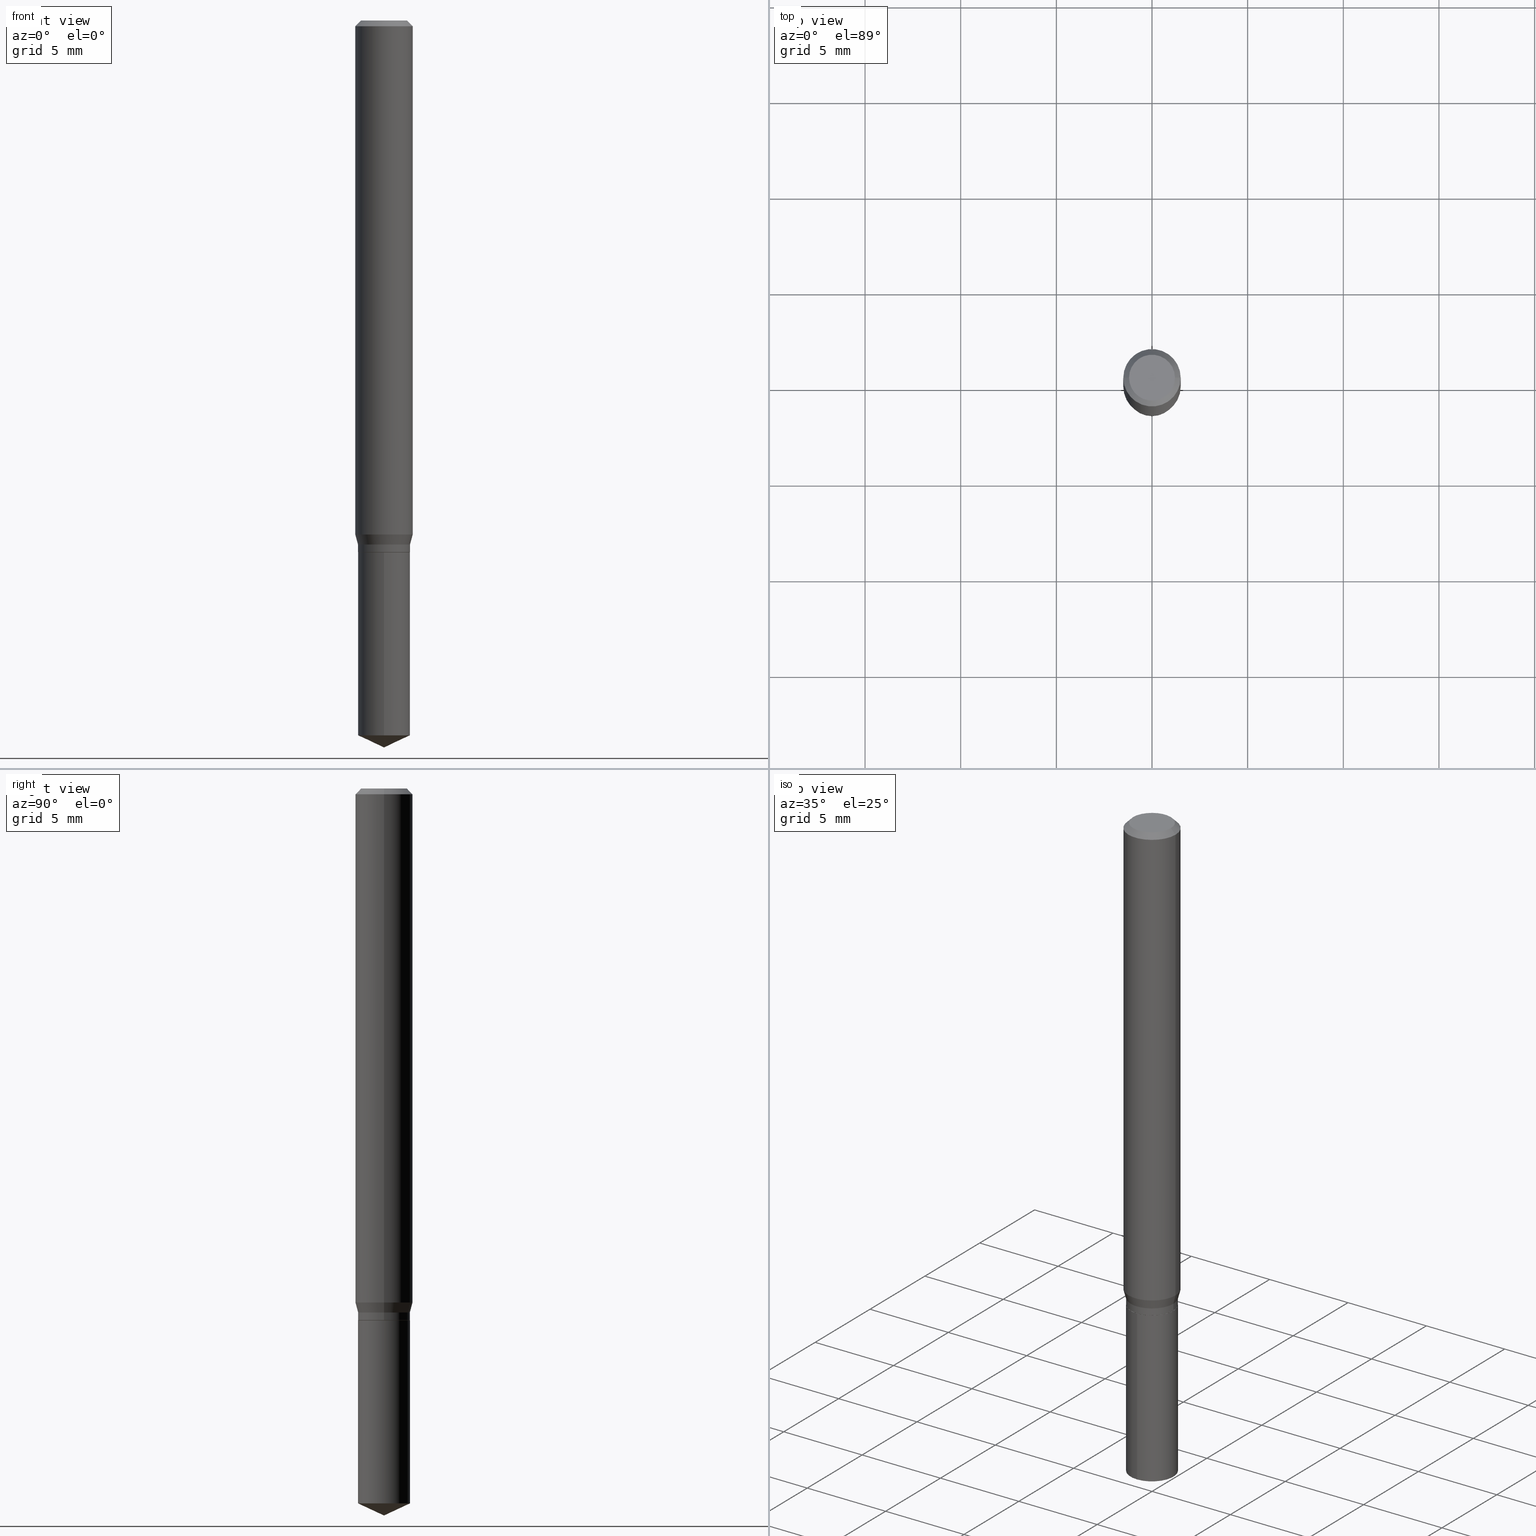
[diagram: canonical four-view strip — front | top / right | iso, engineering-drawing reading convention]
A machine part, canonical four-view strip (front | top / right | iso — engineering-drawing reading convention). The complete STEP part file that produces these views, byte-faithful:
ISO-10303-21;
HEADER;
FILE_DESCRIPTION (( 'STEP AP203' ),
    '1' );
FILE_NAME ('07687.STEP',
    '2024-04-24T01:03:04',
    ( '' ),
    ( '' ),
    'SwSTEP 2.0',
    'SolidWorks 2023',
    '' );
FILE_SCHEMA (( 'CONFIG_CONTROL_DESIGN' ));
ENDSEC;

DATA;
#1 = DIRECTION ( 'NONE',  ( -6.982962677686267499E-15, -1.000000000000000000, 3.520397390770465703E-15 ) ) ;
#2 = CARTESIAN_POINT ( 'NONE',  ( 0.05304999999999999993, -4.191872495415079241E-15, -1.094500000000000028 ) ) ;
#3 = DATE_AND_TIME ( #42, #224 ) ;
#4 = CARTESIAN_POINT ( 'NONE',  ( 0.04724000000000000421, -3.852183633974369345E-16, -3.380025165621689721E-19 ) ) ;
#5 = CARTESIAN_POINT ( 'NONE',  ( 3.597596898163577988E-29, -5.136425579091718699E-15, -1.471129224905799671 ) ) ;
#6 = PERSON_AND_ORGANIZATION ( #126, #196 ) ;
#7 = EDGE_LOOP ( 'NONE', ( #68, #379, #100, #136 ) ) ;
#8 = CARTESIAN_POINT ( 'NONE',  ( 2.637193560590051210E-29, -3.765213475808447992E-15, -1.078399999999999803 ) ) ;
#9 = DIRECTION ( 'NONE',  ( 1.000000000000000000, -6.982962677686265922E-15, 4.876176775795935793E-29 ) ) ;
#10 = DIRECTION ( 'NONE',  ( 1.000000000000000000, -6.982962677686266711E-15, 0.000000000000000000 ) ) ;
#11 = DIRECTION ( 'NONE',  ( 1.000000000000000000, -6.982962677686265922E-15, 0.000000000000000000 ) ) ;
#12 = EDGE_CURVE ( 'NONE', #475, #291, #428, .T. ) ;
#13 = CONICAL_SURFACE ( 'NONE', #413, 0.05355000000000000038, 0.2617993877991501295 ) ;
#14 = VECTOR ( 'NONE', #135, 39.37007874015748143 ) ;
#15 = DIRECTION ( 'NONE',  ( 6.982962677686265922E-15, 1.000000000000000000, -3.491495526022433599E-15 ) ) ;
#16 = CARTESIAN_POINT ( 'NONE',  ( -0.04724000000000000421, 3.504923541997677355E-16, -3.380025165670481712E-19 ) ) ;
#17 = DIRECTION ( 'NONE',  ( -6.982962677686265922E-15, -1.000000000000000000, 2.550745092123495208E-15 ) ) ;
#18 = DIRECTION ( 'NONE',  ( -1.000000000000000000, 6.982962677686265922E-15, -4.876176775795935793E-29 ) ) ;
#19 = DIRECTION ( 'NONE',  ( 1.000000000000000000, -6.982962677686265133E-15, 0.000000000000000000 ) ) ;
#20 = ADVANCED_FACE ( 'NONE', ( #43 ), #114, .T. ) ;
#21 = CARTESIAN_POINT ( 'NONE',  ( -3.739376513900635326E-16, -0.05355000000000514210, -1.471129224905799449 ) ) ;
#22 = AXIS2_PLACEMENT_3D ( 'NONE', #85, #80, #52 ) ;
#23 = VECTOR ( 'NONE', #66, 39.37007874015748143 ) ;
#24 = DIRECTION ( 'NONE',  ( 1.000000000000000000, -6.982962677686265922E-15, 0.000000000000000000 ) ) ;
#25 = AXIS2_PLACEMENT_3D ( 'NONE', #124, #89, #9 ) ;
#26 = ORIENTED_EDGE ( 'NONE', *, *, #110, .T. ) ;
#27 = ORIENTED_EDGE ( 'NONE', *, *, #363, .F. ) ;
#28 = EDGE_CURVE ( 'NONE', #97, #208, #337, .T. ) ;
#29 = PERSON_AND_ORGANIZATION ( #126, #196 ) ;
#30 = VERTEX_POINT ( 'NONE', #4 ) ;
#31 = COORDINATED_UNIVERSAL_TIME_OFFSET ( 5, 0, .BEHIND. ) ;
#32 = LOCAL_TIME ( 21, 3, 4.000000000000000000, #256 ) ;
#33 = ORIENTED_EDGE ( 'NONE', *, *, #486, .T. ) ;
#34 = DIRECTION ( 'NONE',  ( -2.445468806185136597E-29, 3.491481338843145583E-15, 1.000000000000000000 ) ) ;
#35 = SECURITY_CLASSIFICATION_LEVEL ( 'unclassified' ) ;
#36 = FACE_OUTER_BOUND ( 'NONE', #362, .T. ) ;
#37 = EDGE_CURVE ( 'NONE', #133, #475, #420, .T. ) ;
#38 = ORIENTED_EDGE ( 'NONE', *, *, #212, .F. ) ;
#39 = CIRCLE ( 'NONE', #121, 0.05304999999999999993 ) ;
#40 = VERTEX_POINT ( 'NONE', #304 ) ;
#41 = VECTOR ( 'NONE', #96, 39.37007874015748143 ) ;
#42 = CALENDAR_DATE ( 2024, 23, 4 ) ;
#43 = FACE_OUTER_BOUND ( 'NONE', #297, .T. ) ;
#44 = ADVANCED_FACE ( 'NONE', ( #333 ), #459, .T. ) ;
#45 = ORIENTED_EDGE ( 'NONE', *, *, #12, .T. ) ;
#46 = AXIS2_PLACEMENT_3D ( 'NONE', #94, #53, #396 ) ;
#47 = LOCAL_TIME ( 21, 3, 4.000000000000000000, #31 ) ;
#48 = CARTESIAN_POINT ( 'NONE',  ( 2.676565608369631794E-29, -3.821426325363822773E-15, -1.094499999999999806 ) ) ;
#49 = MANIFOLD_SOLID_BREP ( 'Body-Move/Copy2[2]', #84 ) ;
#50 = DIRECTION ( 'NONE',  ( -2.445468806185136597E-29, 3.491481338843145583E-15, 1.000000000000000000 ) ) ;
#51 = CARTESIAN_POINT ( 'NONE',  ( 2.676565608369631794E-29, -3.821426325363822773E-15, -1.094499999999999806 ) ) ;
#52 = DIRECTION ( 'NONE',  ( 1.000000000000000000, -6.982962677686266711E-15, 0.000000000000000000 ) ) ;
#53 = DIRECTION ( 'NONE',  ( -2.445468806185136597E-29, 3.491481338843145583E-15, 1.000000000000000000 ) ) ;
#54 = FACE_OUTER_BOUND ( 'NONE', #267, .T. ) ;
#55 = DIRECTION ( 'NONE',  ( -2.445468806185136597E-29, 3.491481338843145583E-15, 1.000000000000000000 ) ) ;
#56 = CARTESIAN_POINT ( 'NONE',  ( 8.265746106709734507E-48, -1.180129479067563789E-33, -3.380025165646692144E-19 ) ) ;
#57 = FACE_OUTER_BOUND ( 'NONE', #322, .T. ) ;
#58 = EDGE_LOOP ( 'NONE', ( #417, #445, #412, #478 ) ) ;
#59 = CIRCLE ( 'NONE', #418, 0.05304999999999999993 ) ;
#60 = VECTOR ( 'NONE', #183, 39.37007874015748143 ) ;
#61 = ORIENTED_EDGE ( 'NONE', *, *, #28, .F. ) ;
#62 = VERTEX_POINT ( 'NONE', #382 ) ;
#63 = CARTESIAN_POINT ( 'NONE',  ( 3.804956349995603256E-16, 0.05354999999999617705, -1.094500000000000028 ) ) ;
#64 = ORIENTED_EDGE ( 'NONE', *, *, #462, .T. ) ;
#65 = APPROVAL ( #446, 'UNSPECIFIED' ) ;
#66 = DIRECTION ( 'NONE',  ( -2.445458899330790108E-29, 3.491495526022433599E-15, 1.000000000000000000 ) ) ;
#67 = APPROVAL_PERSON_ORGANIZATION ( #113, #430, #335 ) ;
#68 = ORIENTED_EDGE ( 'NONE', *, *, #363, .T. ) ;
#69 = EDGE_CURVE ( 'NONE', #365, #407, #452, .T. ) ;
#70 = CARTESIAN_POINT ( 'NONE',  ( 2.675342873966538993E-29, -3.819680584694400481E-15, -1.093999999999999861 ) ) ;
#71 = APPROVAL_DATE_TIME ( #416, #438 ) ;
#72 = DIRECTION ( 'NONE',  ( -2.445458899330790108E-29, 3.491495526022433205E-15, 1.000000000000000000 ) ) ;
#73 = DIRECTION ( 'NONE',  ( 1.000000000000000000, -6.982962677686266711E-15, 0.000000000000000000 ) ) ;
#74 = CC_DESIGN_PERSON_AND_ORGANIZATION_ASSIGNMENT ( #373, #266, ( #306 ) ) ;
#75 = DATE_TIME_ROLE ( 'creation_date' ) ;
#76 = AXIS2_PLACEMENT_3D ( 'NONE', #423, #328, #302 ) ;
#77 = VERTEX_POINT ( 'NONE', #16 ) ;
#78 = DIRECTION ( 'NONE',  ( 6.439704144417026409E-15, 0.9063077870366516020, 0.4226182617406958331 ) ) ;
#79 = CALENDAR_DATE ( 2024, 23, 4 ) ;
#80 = DIRECTION ( 'NONE',  ( -2.445468806185136597E-29, 3.491481338843145583E-15, 1.000000000000000000 ) ) ;
#81 = CONICAL_SURFACE ( 'NONE', #364, 84.42940631927405093, 1.134464013796314674 ) ;
#82 = LINE ( 'NONE', #235, #313 ) ;
#83 = LOCAL_TIME ( 21, 3, 4.000000000000000000, #264 ) ;
#84 = CLOSED_SHELL ( 'NONE', ( #489, #155, #44, #229, #176, #303, #167, #20, #453, #332, #250, #171 ) ) ;
#85 = CARTESIAN_POINT ( 'NONE',  ( 2.888098660104664204E-31, -4.123439461173780263E-17, -0.01181000000000007218 ) ) ;
#86 = DIRECTION ( 'NONE',  ( 1.000000000000000000, -6.982962677686266711E-15, 0.000000000000000000 ) ) ;
#87 = DIRECTION ( 'NONE',  ( -2.445468806185136597E-29, 3.491481338843145583E-15, 1.000000000000000000 ) ) ;
#88 = DIRECTION ( 'NONE',  ( 2.445458899330789267E-29, -3.491495526022433599E-15, -1.000000000000000000 ) ) ;
#89 = DIRECTION ( 'NONE',  ( -2.438088387897960049E-29, 3.491481338843145188E-15, 1.000000000000000000 ) ) ;
#90 = EDGE_CURVE ( 'NONE', #244, #257, #128, .T. ) ;
#91 = CIRCLE ( 'NONE', #191, 0.04724000000000000421 ) ;
#92 = CARTESIAN_POINT ( 'NONE',  ( 0.05355000000000000038, -4.139151127198547467E-15, -1.078399999999999803 ) ) ;
#93 = DIRECTION ( 'NONE',  ( 1.000000000000000000, -6.982962677686266711E-15, 0.000000000000000000 ) ) ;
#94 = CARTESIAN_POINT ( 'NONE',  ( 0.000000000000000000, 0.000000000000000000, 0.000000000000000000 ) ) ;
#95 = ORIENTED_EDGE ( 'NONE', *, *, #479, .T. ) ;
#96 = DIRECTION ( 'NONE',  ( -6.328713451373370956E-15, -0.9063077870366487154, 0.4226182617407022724 ) ) ;
#97 = VERTEX_POINT ( 'NONE', #148 ) ;
#98 = DIRECTION ( 'NONE',  ( 1.000000000000000000, 0.000000000000000000, 0.000000000000000000 ) ) ;
#99 = EDGE_CURVE ( 'NONE', #257, #244, #157, .T. ) ;
#100 = ORIENTED_EDGE ( 'NONE', *, *, #384, .F. ) ;
#101 = ORIENTED_EDGE ( 'NONE', *, *, #189, .T. ) ;
#102 = ORIENTED_EDGE ( 'NONE', *, *, #399, .T. ) ;
#103 = AXIS2_PLACEMENT_3D ( 'NONE', #8, #468, #283 ) ;
#104 = CC_DESIGN_APPROVAL ( #438, ( #306 ) ) ;
#105 = VECTOR ( 'NONE', #243, 39.37007874015748143 ) ;
#106 = ORIENTED_EDGE ( 'NONE', *, *, #409, .T. ) ;
#107 = PERSON_AND_ORGANIZATION ( #126, #196 ) ;
#108 = ORIENTED_EDGE ( 'NONE', *, *, #273, .T. ) ;
#109 = DATE_AND_TIME ( #188, #83 ) ;
#110 = EDGE_CURVE ( 'NONE', #77, #208, #82, .T. ) ;
#111 = DIRECTION ( 'NONE',  ( -2.445468806185136597E-29, 3.491481338843145583E-15, 1.000000000000000000 ) ) ;
#112 = DIRECTION ( 'NONE',  ( -6.982962677686265922E-15, -1.000000000000000000, 5.101490184246990416E-15 ) ) ;
#113 = PERSON_AND_ORGANIZATION ( #126, #196 ) ;
#114 = CYLINDRICAL_SURFACE ( 'NONE', #248, 0.05905000000000006771 ) ;
#115 = PERSON_AND_ORGANIZATION ( #126, #196 ) ;
#116 = DIRECTION ( 'NONE',  ( -6.982962677686267499E-15, -1.000000000000000000, 3.520397390770465703E-15 ) ) ;
#117 = ORIENTED_EDGE ( 'NONE', *, *, #456, .T. ) ;
#118 = DIRECTION ( 'NONE',  ( -6.982962677686265922E-15, -1.000000000000000000, 5.101490184246990416E-15 ) ) ;
#119 = EDGE_CURVE ( 'NONE', #455, #257, #150, .T. ) ;
#120 = DIRECTION ( 'NONE',  ( -2.445468806185136597E-29, 3.491481338843145583E-15, 1.000000000000000000 ) ) ;
#121 = AXIS2_PLACEMENT_3D ( 'NONE', #355, #50, #270 ) ;
#122 = CARTESIAN_POINT ( 'NONE',  ( 2.676565608369631794E-29, -3.821426325363822773E-15, -1.094499999999999806 ) ) ;
#123 = DIRECTION ( 'NONE',  ( -2.445458899330790108E-29, 3.491495526022433205E-15, 1.000000000000000000 ) ) ;
#124 = CARTESIAN_POINT ( 'NONE',  ( 7.086945735193175307E-30, -6.639529651533037669E-15, -1.094500000000000028 ) ) ;
#125 = DIRECTION ( 'NONE',  ( -2.445458899330790108E-29, 3.491495526022433599E-15, 1.000000000000000000 ) ) ;
#126 = PERSON ( 'UNSPECIFIED', 'UNSPECIFIED', 'UNSPECIFIED', ('UNSPECIFIED'), ('UNSPECIFIED'), ('UNSPECIFIED') ) ;
#127 = CARTESIAN_POINT ( 'NONE',  ( 2.637193560590051210E-29, -3.765213475808447992E-15, -1.078399999999999803 ) ) ;
#128 = CIRCLE ( 'NONE', #323, 0.05355000000000000038 ) ;
#129 = DIRECTION ( 'NONE',  ( 2.438088387897960049E-29, -3.491481338843145188E-15, -1.000000000000000000 ) ) ;
#130 = CYLINDRICAL_SURFACE ( 'NONE', #46, 0.05355000000000000038 ) ;
#131 = VERTEX_POINT ( 'NONE', #154 ) ;
#132 =( CONVERSION_BASED_UNIT ( 'INCH', #402 ) LENGTH_UNIT ( ) NAMED_UNIT ( #358 ) );
#133 = VERTEX_POINT ( 'NONE', #308 ) ;
#134 = ADVANCED_FACE ( 'NONE', ( #463 ), #466, .T. ) ;
#135 = DIRECTION ( 'NONE',  ( -2.445468806185136877E-29, 3.491481338843145188E-15, 1.000000000000000000 ) ) ;
#136 = ORIENTED_EDGE ( 'NONE', *, *, #424, .F. ) ;
#137 = VECTOR ( 'NONE', #242, 39.37007874015747433 ) ;
#138 = DIRECTION ( 'NONE',  ( 0.000000000000000000, 0.000000000000000000, 1.000000000000000000 ) ) ;
#139 = CARTESIAN_POINT ( 'NONE',  ( 3.658651059288794515E-29, -5.223626456482161457E-15, -1.496099999999999985 ) ) ;
#140 = EDGE_CURVE ( 'NONE', #370, #291, #437, .T. ) ;
#141 = ORIENTED_EDGE ( 'NONE', *, *, #90, .F. ) ;
#142 =( NAMED_UNIT ( * ) PLANE_ANGLE_UNIT ( ) SI_UNIT ( $, .RADIAN. ) );
#143 = CARTESIAN_POINT ( 'NONE',  ( 0.000000000000000000, 0.000000000000000000, 0.000000000000000000 ) ) ;
#144 = AXIS2_PLACEMENT_3D ( 'NONE', #143, #295, #228 ) ;
#145 = DIRECTION ( 'NONE',  ( -2.445468806185136597E-29, 3.491481338843145583E-15, 1.000000000000000000 ) ) ;
#146 = ORIENTED_EDGE ( 'NONE', *, *, #340, .T. ) ;
#147 = CALENDAR_DATE ( 2024, 23, 4 ) ;
#148 = CARTESIAN_POINT ( 'NONE',  ( -0.05905000000000013016, -3.273970868715779481E-15, -1.057873720558370589 ) ) ;
#149 = ORIENTED_EDGE ( 'NONE', *, *, #202, .T. ) ;
#150 = LINE ( 'NONE', #305, #471 ) ;
#151 = DIRECTION ( 'NONE',  ( -2.445458899330790108E-29, 3.491495526022433205E-15, 1.000000000000000000 ) ) ;
#152 = AXIS2_PLACEMENT_3D ( 'NONE', #288, #177, #24 ) ;
#153 = ORIENTED_EDGE ( 'NONE', *, *, #37, .T. ) ;
#154 = CARTESIAN_POINT ( 'NONE',  ( 0.05905000000000013016, -4.105890300299494288E-15, -1.057873720558370589 ) ) ;
#155 = ADVANCED_FACE ( 'NONE', ( #467 ), #488, .T. ) ;
#156 = FACE_OUTER_BOUND ( 'NONE', #220, .T. ) ;
#157 = CIRCLE ( 'NONE', #443, 0.05355000000000000038 ) ;
#158 = FACE_OUTER_BOUND ( 'NONE', #342, .T. ) ;
#159 = CIRCLE ( 'NONE', #182, 0.05904999999999999832 ) ;
#160 = CARTESIAN_POINT ( 'NONE',  ( -0.05304999999999999993, -3.441834176868978523E-15, -1.094500000000000028 ) ) ;
#161 = CARTESIAN_POINT ( 'NONE',  ( 2.637193560590051210E-29, -3.765213475808447992E-15, -1.078399999999999803 ) ) ;
#162 = CARTESIAN_POINT ( 'NONE',  ( 2.586997184508507424E-29, -3.693546354182119368E-15, -1.057873720558370589 ) ) ;
#163 = DIRECTION ( 'NONE',  ( 1.000000000000000000, -6.982962677686266711E-15, 0.000000000000000000 ) ) ;
#164 = DIRECTION ( 'NONE',  ( -2.445468806185136597E-29, 3.491481338843145583E-15, 1.000000000000000000 ) ) ;
#165 = ORIENTED_EDGE ( 'NONE', *, *, #353, .T. ) ;
#166 = AXIS2_PLACEMENT_3D ( 'NONE', #275, #120, #239 ) ;
#167 = ADVANCED_FACE ( 'NONE', ( #156 ), #13, .T. ) ;
#168 = CONICAL_SURFACE ( 'NONE', #385, 84.42940631927405093, 1.134464013796314674 ) ;
#169 = LINE ( 'NONE', #63, #23 ) ;
#170 = ORIENTED_EDGE ( 'NONE', *, *, #393, .T. ) ;
#171 = ADVANCED_FACE ( 'NONE', ( #349 ), #377, .T. ) ;
#172 = ORIENTED_EDGE ( 'NONE', *, *, #353, .F. ) ;
#173 = PERSON_AND_ORGANIZATION_ROLE ( 'design_owner' ) ;
#174 = EDGE_LOOP ( 'NONE', ( #38, #172 ) ) ;
#175 = CC_DESIGN_SECURITY_CLASSIFICATION ( #481, ( #306 ) ) ;
#176 = ADVANCED_FACE ( 'NONE', ( #158 ), #130, .T. ) ;
#177 = DIRECTION ( 'NONE',  ( -2.445468806185136597E-29, 3.491481338843145583E-15, 1.000000000000000000 ) ) ;
#178 = PERSON_AND_ORGANIZATION_ROLE ( 'classification_officer' ) ;
#179 = CYLINDRICAL_SURFACE ( 'NONE', #320, 0.05355000000000000038 ) ;
#180 = ORIENTED_EDGE ( 'NONE', *, *, #470, .T. ) ;
#181 = AXIS2_PLACEMENT_3D ( 'NONE', #241, #391, #19 ) ;
#182 = AXIS2_PLACEMENT_3D ( 'NONE', #193, #354, #163 ) ;
#183 = DIRECTION ( 'NONE',  ( -2.445468806185136877E-29, 3.491481338843145188E-15, 1.000000000000000000 ) ) ;
#184 = DIRECTION ( 'NONE',  ( -6.982962677686265922E-15, -1.000000000000000000, 2.550745092123495208E-15 ) ) ;
#185 = CARTESIAN_POINT ( 'NONE',  ( 0.000000000000000000, 0.000000000000000000, 0.000000000000000000 ) ) ;
#186 = DATE_AND_TIME ( #454, #32 ) ;
#187 = ORIENTED_EDGE ( 'NONE', *, *, #140, .F. ) ;
#188 = CALENDAR_DATE ( 2024, 23, 4 ) ;
#189 = EDGE_CURVE ( 'NONE', #475, #40, #318, .T. ) ;
#190 = CIRCLE ( 'NONE', #103, 0.05355000000000000038 ) ;
#191 = AXIS2_PLACEMENT_3D ( 'NONE', #56, #325, #410 ) ;
#192 = DESIGN_CONTEXT ( 'detailed design', #347, 'design' ) ;
#193 = CARTESIAN_POINT ( 'NONE',  ( 2.888098660104664204E-31, -4.123439461173780263E-17, -0.01181000000000007218 ) ) ;
#194 = DIRECTION ( 'NONE',  ( -2.445468806185136597E-29, 3.491481338843145583E-15, 1.000000000000000000 ) ) ;
#195 = DIRECTION ( 'NONE',  ( -2.445458899330790108E-29, 3.491495526022433205E-15, 1.000000000000000000 ) ) ;
#196 = ORGANIZATION ( 'UNSPECIFIED', 'UNSPECIFIED', '' ) ;
#197 = ADVANCED_FACE ( 'NONE', ( #316 ), #392, .T. ) ;
#198 = LINE ( 'NONE', #319, #386 ) ;
#199 = CC_DESIGN_DATE_AND_TIME_ASSIGNMENT ( #186, #75, ( #219 ) ) ;
#200 = PLANE ( 'NONE',  #25 ) ;
#201 = LINE ( 'NONE', #477, #14 ) ;
#202 = EDGE_CURVE ( 'NONE', #62, #97, #281, .T. ) ;
#203 = FACE_OUTER_BOUND ( 'NONE', #174, .T. ) ;
#204 = ORIENTED_EDGE ( 'NONE', *, *, #424, .T. ) ;
#205 = AXIS2_PLACEMENT_3D ( 'NONE', #162, #87, #465 ) ;
#206 = AXIS2_PLACEMENT_3D ( 'NONE', #70, #34, #73 ) ;
#207 = MECHANICAL_CONTEXT ( 'NONE', #334, 'mechanical' ) ;
#208 = VERTEX_POINT ( 'NONE', #431 ) ;
#209 = MANIFOLD_SOLID_BREP ( 'Body-Move/Copy2[1]', #361 ) ;
#210 = CARTESIAN_POINT ( 'NONE',  ( 3.658651059288795076E-29, -5.223626456482161457E-15, -1.496099999999999985 ) ) ;
#211 = EDGE_LOOP ( 'NONE', ( #286, #476, #301, #442 ) ) ;
#212 = EDGE_CURVE ( 'NONE', #133, #370, #59, .T. ) ;
#213 = APPLICATION_PROTOCOL_DEFINITION ( 'international standard', 'config_control_design', 1994, #347 ) ;
#214 = ORIENTED_EDGE ( 'NONE', *, *, #399, .F. ) ;
#215 = AXIS2_PLACEMENT_3D ( 'NONE', #161, #55, #86 ) ;
#216 = FACE_OUTER_BOUND ( 'NONE', #211, .T. ) ;
#217 = EDGE_LOOP ( 'NONE', ( #458, #406, #141 ) ) ;
#218 = CARTESIAN_POINT ( 'NONE',  ( -9.261924752013118283E-28, 1.322368428517963298E-13, 37.87397874015748300 ) ) ;
#219 = PRODUCT_DEFINITION ( 'UNKNOWN', '', #306, #192 ) ;
#220 = EDGE_LOOP ( 'NONE', ( #367, #450, #106, #214 ) ) ;
#221 = DIRECTION ( 'NONE',  ( 1.000000000000000000, -6.982962677686266711E-15, 4.876176775795936353E-29 ) ) ;
#222 = AXIS2_PLACEMENT_3D ( 'NONE', #122, #123, #238 ) ;
#223 = APPROVAL_STATUS ( 'not_yet_approved' ) ;
#224 = LOCAL_TIME ( 21, 3, 4.000000000000000000, #378 ) ;
#225 = CARTESIAN_POINT ( 'NONE',  ( 2.676565608369631794E-29, -3.821426325363822773E-15, -1.094499999999999806 ) ) ;
#226 = APPROVAL_STATUS ( 'not_yet_approved' ) ;
#227 = EDGE_LOOP ( 'NONE', ( #372, #64, #482 ) ) ;
#228 = DIRECTION ( 'NONE',  ( 1.000000000000000000, -6.982962677686266711E-15, 4.876176775795936353E-29 ) ) ;
#229 = ADVANCED_FACE ( 'NONE', ( #57 ), #434, .T. ) ;
#230 = PRODUCT_DEFINITION_SHAPE ( 'NONE', 'NONE',  #219 ) ;
#231 = APPROVAL_ROLE ( '' ) ;
#232 = CIRCLE ( 'NONE', #22, 0.05904999999999999832 ) ;
#233 = CARTESIAN_POINT ( 'NONE',  ( 0.05904999999999999832, -4.535783407291118600E-16, -0.01181000000000007218 ) ) ;
#234 = VECTOR ( 'NONE', #125, 39.37007874015748143 ) ;
#235 = CARTESIAN_POINT ( 'NONE',  ( -0.05904999999999999832, 3.711095515056362547E-16, -0.01181000000000007218 ) ) ;
#236 = CARTESIAN_POINT ( 'NONE',  ( 8.265746106709734507E-48, -1.180129479067563789E-33, -3.380025165646692144E-19 ) ) ;
#237 = LINE ( 'NONE', #432, #234 ) ;
#238 = DIRECTION ( 'NONE',  ( -6.982962677686265922E-15, -1.000000000000000000, 2.550745092123495208E-15 ) ) ;
#239 = DIRECTION ( 'NONE',  ( 1.000000000000000000, -6.982962677686266711E-15, 0.000000000000000000 ) ) ;
#240 = DIRECTION ( 'NONE',  ( -0.7071067811864267805, 7.493145998869918709E-15, 0.7071067811866682540 ) ) ;
#241 = CARTESIAN_POINT ( 'NONE',  ( 2.586997184508507424E-29, -3.693546354182119368E-15, -1.057873720558370589 ) ) ;
#242 = DIRECTION ( 'NONE',  ( -0.2588190451025214611, 5.211531920934551042E-15, 0.9659258262890682012 ) ) ;
#243 = DIRECTION ( 'NONE',  ( -2.445468806185136877E-29, 3.491481338843145188E-15, 1.000000000000000000 ) ) ;
#244 = VERTEX_POINT ( 'NONE', #21 ) ;
#245 = DIRECTION ( 'NONE',  ( 0.7071067811865453523, -7.319954787623248157E-15, -0.7071067811865496822 ) ) ;
#246 = ORIENTED_EDGE ( 'NONE', *, *, #310, .T. ) ;
#247 = AXIS2_PLACEMENT_3D ( 'NONE', #225, #72, #184 ) ;
#248 = AXIS2_PLACEMENT_3D ( 'NONE', #185, #111, #221 ) ;
#249 = APPLICATION_PROTOCOL_DEFINITION ( 'international standard', 'config_control_design', 1994, #334 ) ;
#250 = ADVANCED_FACE ( 'NONE', ( #203 ), #200, .F. ) ;
#251 = ORIENTED_EDGE ( 'NONE', *, *, #258, .T. ) ;
#252 = CARTESIAN_POINT ( 'NONE',  ( 0.000000000000000000, 0.000000000000000000, 0.000000000000000000 ) ) ;
#253 = ORIENTED_EDGE ( 'NONE', *, *, #69, .T. ) ;
#254 = EDGE_LOOP ( 'NONE', ( #485, #180, #448, #289 ) ) ;
#255 = AXIS2_PLACEMENT_3D ( 'NONE', #352, #356, #11 ) ;
#256 = COORDINATED_UNIVERSAL_TIME_OFFSET ( 5, 0, .BEHIND. ) ;
#257 = VERTEX_POINT ( 'NONE', #464 ) ;
#258 = EDGE_CURVE ( 'NONE', #77, #30, #388, .T. ) ;
#259 = DIRECTION ( 'NONE',  ( -2.445458899330790108E-29, 3.491495526022433205E-15, 1.000000000000000000 ) ) ;
#260 = ORIENTED_EDGE ( 'NONE', *, *, #479, .F. ) ;
#261 = APPROVAL_DATE_TIME ( #490, #65 ) ;
#262 = DIRECTION ( 'NONE',  ( 0.7071067811864267805, -2.468850131080992517E-15, 0.7071067811866682540 ) ) ;
#263 = AXIS2_PLACEMENT_3D ( 'NONE', #48, #88, #15 ) ;
#264 = COORDINATED_UNIVERSAL_TIME_OFFSET ( 5, 0, .BEHIND. ) ;
#265 = ORIENTED_EDGE ( 'NONE', *, *, #456, .F. ) ;
#266 = PERSON_AND_ORGANIZATION_ROLE ( 'creator' ) ;
#267 = EDGE_LOOP ( 'NONE', ( #251, #117 ) ) ;
#268 = VECTOR ( 'NONE', #240, 39.37007874015748143 ) ;
#269 = CC_DESIGN_PERSON_AND_ORGANIZATION_ASSIGNMENT ( #29, #173, ( #421 ) ) ;
#270 = DIRECTION ( 'NONE',  ( 1.000000000000000000, -6.982962677686265922E-15, 0.000000000000000000 ) ) ;
#271 = AXIS2_PLACEMENT_3D ( 'NONE', #483, #329, #408 ) ;
#272 = CARTESIAN_POINT ( 'NONE',  ( -0.05304999999999999993, -3.444483404043090118E-15, -1.094500000000000028 ) ) ;
#273 = EDGE_CURVE ( 'NONE', #407, #365, #338, .T. ) ;
#274 = DIRECTION ( 'NONE',  ( -1.000000000000000000, 6.982962677686266711E-15, 0.000000000000000000 ) ) ;
#275 = CARTESIAN_POINT ( 'NONE',  ( 2.637193560590051210E-29, -3.765213475808447992E-15, -1.078399999999999803 ) ) ;
#276 = DIRECTION ( 'NONE',  ( 2.445468806185136597E-29, -3.491481338843145583E-15, -1.000000000000000000 ) ) ;
#277 = CC_DESIGN_DATE_AND_TIME_ASSIGNMENT ( #109, #341, ( #481 ) ) ;
#278 = CARTESIAN_POINT ( 'NONE',  ( -3.739376513900727524E-16, -0.05355000000000382371, -1.094499999999999806 ) ) ;
#279 = AXIS2_PLACEMENT_3D ( 'NONE', #474, #276, #274 ) ;
#280 = APPROVAL_PERSON_ORGANIZATION ( #107, #438, #231 ) ;
#281 = LINE ( 'NONE', #311, #137 ) ;
#282 = ADVANCED_FACE ( 'NONE', ( #380 ), #168, .T. ) ;
#283 = DIRECTION ( 'NONE',  ( 1.000000000000000000, -6.982962677686266711E-15, 0.000000000000000000 ) ) ;
#284 = ORIENTED_EDGE ( 'NONE', *, *, #110, .F. ) ;
#285 = CARTESIAN_POINT ( 'NONE',  ( 0.05355000000000000038, -4.193618236084499956E-15, -1.093999999999999861 ) ) ;
#286 = ORIENTED_EDGE ( 'NONE', *, *, #212, .T. ) ;
#287 = ADVANCED_FACE ( 'NONE', ( #346 ), #81, .T. ) ;
#288 = CARTESIAN_POINT ( 'NONE',  ( 2.676565608369632355E-29, -3.821426325363822773E-15, -1.094500000000000028 ) ) ;
#289 = ORIENTED_EDGE ( 'NONE', *, *, #403, .F. ) ;
#290 = PERSON_AND_ORGANIZATION ( #126, #196 ) ;
#291 = VERTEX_POINT ( 'NONE', #374 ) ;
#292 = CARTESIAN_POINT ( 'NONE',  ( 0.05904999999999999832, -4.463468013801466955E-16, -0.01181000000000007218 ) ) ;
#293 = ORIENTED_EDGE ( 'NONE', *, *, #310, .F. ) ;
#294 = CC_DESIGN_PERSON_AND_ORGANIZATION_ASSIGNMENT ( #115, #414, ( #219 ) ) ;
#295 = DIRECTION ( 'NONE',  ( -2.445468806185136597E-29, 3.491481338843145583E-15, 1.000000000000000000 ) ) ;
#296 = APPROVAL_PERSON_ORGANIZATION ( #290, #65, #368 ) ;
#297 = EDGE_LOOP ( 'NONE', ( #61, #102, #204, #415 ) ) ;
#298 = PERSON_AND_ORGANIZATION_ROLE ( 'design_supplier' ) ;
#299 = UNCERTAINTY_MEASURE_WITH_UNIT (LENGTH_MEASURE( 1.000000000000000082E-05 ), #132, 'distance_accuracy_value', 'NONE');
#300 = DIRECTION ( 'NONE',  ( 1.000000000000000000, -6.982962677686266711E-15, 4.876176775795935793E-29 ) ) ;
#301 = ORIENTED_EDGE ( 'NONE', *, *, #12, .F. ) ;
#302 = DIRECTION ( 'NONE',  ( -6.982962677686265922E-15, -1.000000000000000000, 2.550745092123495208E-15 ) ) ;
#303 = ADVANCED_FACE ( 'NONE', ( #36 ), #179, .T. ) ;
#304 = CARTESIAN_POINT ( 'NONE',  ( 0.05355000000000000038, -4.139151127198547467E-15, -1.078399999999999803 ) ) ;
#305 = CARTESIAN_POINT ( 'NONE',  ( 3.658672935554494692E-29, -5.223595400746700193E-15, -1.496099999999999985 ) ) ;
#306 = PRODUCT_DEFINITION_FORMATION_WITH_SPECIFIED_SOURCE ( 'ANY', '', #421, .NOT_KNOWN. ) ;
#307 = DIRECTION ( 'NONE',  ( -2.445458899330790108E-29, 3.491495526022433205E-15, 1.000000000000000000 ) ) ;
#308 = CARTESIAN_POINT ( 'NONE',  ( 0.05304999999999999993, -4.191872495415079241E-15, -1.094500000000000028 ) ) ;
#309 = CARTESIAN_POINT ( 'NONE',  ( -9.261924752013118283E-28, 1.322368428517963298E-13, 37.87397874015748300 ) ) ;
#310 = EDGE_CURVE ( 'NONE', #40, #62, #190, .T. ) ;
#311 = CARTESIAN_POINT ( 'NONE',  ( -0.05355000000000000038, -3.384717840808914044E-15, -1.078399999999999803 ) ) ;
#312 = EDGE_CURVE ( 'NONE', #62, #40, #426, .T. ) ;
#313 = VECTOR ( 'NONE', #389, 39.37007874015748143 ) ;
#314 = DIRECTION ( 'NONE',  ( -2.445468806185136597E-29, 3.491481338843145583E-15, 1.000000000000000000 ) ) ;
#315 = LOCAL_TIME ( 21, 3, 4.000000000000000000, #383 ) ;
#316 = FACE_OUTER_BOUND ( 'NONE', #58, .T. ) ;
#317 = PLANE ( 'NONE',  #449 ) ;
#318 = LINE ( 'NONE', #469, #105 ) ;
#319 = CARTESIAN_POINT ( 'NONE',  ( 0.05905000000000006771, -4.123439461173745257E-16, 2.879382386107503723E-30 ) ) ;
#320 = AXIS2_PLACEMENT_3D ( 'NONE', #336, #145, #300 ) ;
#321 = DIRECTION ( 'NONE',  ( 1.000000000000000000, -6.982962677686266711E-15, 4.876185090822587894E-29 ) ) ;
#322 = EDGE_LOOP ( 'NONE', ( #246, #149, #27, #422 ) ) ;
#323 = AXIS2_PLACEMENT_3D ( 'NONE', #480, #259, #118 ) ;
#324 = ORIENTED_EDGE ( 'NONE', *, *, #486, .F. ) ;
#325 = DIRECTION ( 'NONE',  ( -2.445468806185136597E-29, 3.491481338843145583E-15, 1.000000000000000000 ) ) ;
#326 = ORIENTED_EDGE ( 'NONE', *, *, #393, .F. ) ;
#327 =( LENGTH_UNIT ( ) NAMED_UNIT ( * ) SI_UNIT ( $, .METRE. ) );
#328 = DIRECTION ( 'NONE',  ( -2.445458899330790108E-29, 3.491495526022433205E-15, 1.000000000000000000 ) ) ;
#329 = DIRECTION ( 'NONE',  ( 2.445468806185136597E-29, -3.491481338843145583E-15, -1.000000000000000000 ) ) ;
#330 = ADVANCED_BREP_SHAPE_REPRESENTATION ( '07687', ( #209, #49, #394 ), #444 ) ;
#331 = EDGE_LOOP ( 'NONE', ( #324, #440, #26, #146 ) ) ;
#332 = ADVANCED_FACE ( 'NONE', ( #54 ), #317, .F. ) ;
#333 = FACE_OUTER_BOUND ( 'NONE', #7, .T. ) ;
#334 = APPLICATION_CONTEXT ( 'configuration controlled 3d designs of mechanical parts and assemblies' ) ;
#335 = APPROVAL_ROLE ( '' ) ;
#336 = CARTESIAN_POINT ( 'NONE',  ( 0.000000000000000000, 0.000000000000000000, 0.000000000000000000 ) ) ;
#337 = LINE ( 'NONE', #376, #60 ) ;
#338 = CIRCLE ( 'NONE', #247, 0.05355000000000000038 ) ;
#339 = PRODUCT_RELATED_PRODUCT_CATEGORY ( 'detail', '', ( #421 ) ) ;
#340 = EDGE_CURVE ( 'NONE', #208, #381, #232, .T. ) ;
#341 = DATE_TIME_ROLE ( 'classification_date' ) ;
#342 = EDGE_LOOP ( 'NONE', ( #45, #95, #293, #357 ) ) ;
#343 = VECTOR ( 'NONE', #262, 39.37007874015748143 ) ;
#344 = CIRCLE ( 'NONE', #427, 0.05355000000000000038 ) ;
#345 = SHAPE_DEFINITION_REPRESENTATION ( #230, #330 ) ;
#346 = FACE_OUTER_BOUND ( 'NONE', #227, .T. ) ;
#347 = APPLICATION_CONTEXT ( 'configuration controlled 3d designs of mechanical parts and assemblies' ) ;
#348 = CARTESIAN_POINT ( 'NONE',  ( 2.675342873966538993E-29, -3.819680584694400481E-15, -1.093999999999999861 ) ) ;
#349 = FACE_OUTER_BOUND ( 'NONE', #447, .T. ) ;
#350 = FACE_OUTER_BOUND ( 'NONE', #461, .T. ) ;
#351 = CC_DESIGN_APPROVAL ( #430, ( #481 ) ) ;
#352 = CARTESIAN_POINT ( 'NONE',  ( 2.676565608369632355E-29, -3.821426325363822773E-15, -1.094500000000000028 ) ) ;
#353 = EDGE_CURVE ( 'NONE', #370, #133, #39, .T. ) ;
#354 = DIRECTION ( 'NONE',  ( -2.445468806185136597E-29, 3.491481338843145583E-15, 1.000000000000000000 ) ) ;
#355 = CARTESIAN_POINT ( 'NONE',  ( 2.676565608369632355E-29, -3.821426325363822773E-15, -1.094500000000000028 ) ) ;
#356 = DIRECTION ( 'NONE',  ( -2.445468806185136597E-29, 3.491481338843145583E-15, 1.000000000000000000 ) ) ;
#357 = ORIENTED_EDGE ( 'NONE', *, *, #189, .F. ) ;
#358 = DIMENSIONAL_EXPONENTS ( 1.000000000000000000, 0.000000000000000000, 0.000000000000000000, 0.000000000000000000, 0.000000000000000000, 0.000000000000000000, 0.000000000000000000 ) ;
#359 = LINE ( 'NONE', #292, #419 ) ;
#360 = AXIS2_PLACEMENT_3D ( 'NONE', #51, #195, #17 ) ;
#361 = CLOSED_SHELL ( 'NONE', ( #134, #282, #287, #197, #366 ) ) ;
#362 = EDGE_LOOP ( 'NONE', ( #260, #170, #101, #375 ) ) ;
#363 = EDGE_CURVE ( 'NONE', #131, #97, #404, .T. ) ;
#364 = AXIS2_PLACEMENT_3D ( 'NONE', #218, #307, #116 ) ;
#365 = VERTEX_POINT ( 'NONE', #429 ) ;
#366 = ADVANCED_FACE ( 'NONE', ( #350 ), #390, .F. ) ;
#367 = ORIENTED_EDGE ( 'NONE', *, *, #202, .F. ) ;
#368 = APPROVAL_ROLE ( '' ) ;
#369 = CC_DESIGN_PERSON_AND_ORGANIZATION_ASSIGNMENT ( #457, #178, ( #481 ) ) ;
#370 = VERTEX_POINT ( 'NONE', #160 ) ;
#371 = CONICAL_SURFACE ( 'NONE', #152, 0.05304999999999999993, 0.7853981633972775267 ) ;
#372 = ORIENTED_EDGE ( 'NONE', *, *, #119, .F. ) ;
#373 = PERSON_AND_ORGANIZATION ( #126, #196 ) ;
#374 = CARTESIAN_POINT ( 'NONE',  ( -0.05355000000000000038, -3.411951395251890288E-15, -1.093999999999999861 ) ) ;
#375 = ORIENTED_EDGE ( 'NONE', *, *, #312, .F. ) ;
#376 = CARTESIAN_POINT ( 'NONE',  ( -0.05905000000000006771, 4.195754854663396409E-16, -2.904631170795525045E-30 ) ) ;
#377 = CONICAL_SURFACE ( 'NONE', #255, 0.05304999999999999993, 0.7853981633972775267 ) ;
#378 = COORDINATED_UNIVERSAL_TIME_OFFSET ( 5, 0, .BEHIND. ) ;
#379 = ORIENTED_EDGE ( 'NONE', *, *, #28, .T. ) ;
#380 = FACE_OUTER_BOUND ( 'NONE', #217, .T. ) ;
#381 = VERTEX_POINT ( 'NONE', #233 ) ;
#382 = CARTESIAN_POINT ( 'NONE',  ( -0.05355000000000000038, -3.411951395251890288E-15, -1.078399999999999803 ) ) ;
#383 = COORDINATED_UNIVERSAL_TIME_OFFSET ( 5, 0, .BEHIND. ) ;
#384 = EDGE_CURVE ( 'NONE', #381, #208, #159, .T. ) ;
#385 = AXIS2_PLACEMENT_3D ( 'NONE', #309, #151, #1 ) ;
#386 = VECTOR ( 'NONE', #387, 39.37007874015748143 ) ;
#387 = DIRECTION ( 'NONE',  ( -2.445468806185136877E-29, 3.491481338843145188E-15, 1.000000000000000000 ) ) ;
#388 = CIRCLE ( 'NONE', #411, 0.04724000000000000421 ) ;
#389 = DIRECTION ( 'NONE',  ( -0.7071067811865453523, 2.468850131082234184E-15, -0.7071067811865496822 ) ) ;
#390 = PLANE ( 'NONE',  #263 ) ;
#391 = DIRECTION ( 'NONE',  ( -2.445468806185136597E-29, 3.491481338843145583E-15, 1.000000000000000000 ) ) ;
#392 = CYLINDRICAL_SURFACE ( 'NONE', #360, 0.05355000000000000038 ) ;
#393 = EDGE_CURVE ( 'NONE', #291, #475, #344, .T. ) ;
#394 = AXIS2_PLACEMENT_3D ( 'NONE', #252, #138, #98 ) ;
#395 = CARTESIAN_POINT ( 'NONE',  ( 4.132873053354867254E-48, -5.900647395337818946E-34, -1.690012582823346072E-19 ) ) ;
#396 = DIRECTION ( 'NONE',  ( 1.000000000000000000, -6.982962677686266711E-15, 4.876176775795935793E-29 ) ) ;
#397 = DIRECTION ( 'NONE',  ( 0.2588190451025214611, 1.565188264969621573E-15, 0.9659258262890682012 ) ) ;
#398 = CARTESIAN_POINT ( 'NONE',  ( 2.676565608369632355E-29, -3.821426325363822773E-15, -1.094500000000000028 ) ) ;
#399 = EDGE_CURVE ( 'NONE', #97, #131, #451, .T. ) ;
#400 = DIRECTION ( 'NONE',  ( -2.445468806185136597E-29, 3.491481338843145583E-15, 1.000000000000000000 ) ) ;
#401 = EDGE_LOOP ( 'NONE', ( #265, #33, #484, #284 ) ) ;
#402 = LENGTH_MEASURE_WITH_UNIT ( LENGTH_MEASURE( 0.02539999999999999897 ), #327 );
#403 = EDGE_CURVE ( 'NONE', #244, #407, #237, .T. ) ;
#404 = CIRCLE ( 'NONE', #181, 0.05905000000000013016 ) ;
#405 = VECTOR ( 'NONE', #397, 39.37007874015747433 ) ;
#406 = ORIENTED_EDGE ( 'NONE', *, *, #119, .T. ) ;
#407 = VERTEX_POINT ( 'NONE', #278 ) ;
#408 = DIRECTION ( 'NONE',  ( -1.000000000000000000, 6.982962677686266711E-15, 0.000000000000000000 ) ) ;
#409 = EDGE_CURVE ( 'NONE', #40, #131, #436, .T. ) ;
#410 = DIRECTION ( 'NONE',  ( 1.000000000000000000, -6.982962677686266711E-15, 4.876185090822587894E-29 ) ) ;
#411 = AXIS2_PLACEMENT_3D ( 'NONE', #236, #164, #321 ) ;
#412 = ORIENTED_EDGE ( 'NONE', *, *, #403, .T. ) ;
#413 = AXIS2_PLACEMENT_3D ( 'NONE', #127, #194, #93 ) ;
#414 = PERSON_AND_ORGANIZATION_ROLE ( 'creator' ) ;
#415 = ORIENTED_EDGE ( 'NONE', *, *, #340, .F. ) ;
#416 = DATE_AND_TIME ( #147, #315 ) ;
#417 = ORIENTED_EDGE ( 'NONE', *, *, #470, .F. ) ;
#418 = AXIS2_PLACEMENT_3D ( 'NONE', #398, #400, #433 ) ;
#419 = VECTOR ( 'NONE', #245, 39.37007874015748143 ) ;
#420 = LINE ( 'NONE', #2, #343 ) ;
#421 = PRODUCT ( '07687', '07687', '', ( #207 ) ) ;
#422 = ORIENTED_EDGE ( 'NONE', *, *, #409, .F. ) ;
#423 = CARTESIAN_POINT ( 'NONE',  ( 2.676565608369631794E-29, -3.821426325363822773E-15, -1.094499999999999806 ) ) ;
#424 = EDGE_CURVE ( 'NONE', #131, #381, #198, .T. ) ;
#425 = DIRECTION ( 'NONE',  ( -2.445458899330790108E-29, 3.491495526022433205E-15, 1.000000000000000000 ) ) ;
#426 = CIRCLE ( 'NONE', #166, 0.05355000000000000038 ) ;
#427 = AXIS2_PLACEMENT_3D ( 'NONE', #348, #314, #10 ) ;
#428 = CIRCLE ( 'NONE', #206, 0.05355000000000000038 ) ;
#429 = CARTESIAN_POINT ( 'NONE',  ( 3.804956349995695947E-16, 0.05354999999999617705, -1.094500000000000028 ) ) ;
#430 = APPROVAL ( #223, 'UNSPECIFIED' ) ;
#431 = CARTESIAN_POINT ( 'NONE',  ( -0.05904999999999999832, -1.447814888930588267E-15, -0.01181000000000007218 ) ) ;
#432 = CARTESIAN_POINT ( 'NONE',  ( -3.739376513900727524E-16, -0.05355000000000382371, -1.094499999999999806 ) ) ;
#433 = DIRECTION ( 'NONE',  ( 1.000000000000000000, -6.982962677686265922E-15, 0.000000000000000000 ) ) ;
#434 = CONICAL_SURFACE ( 'NONE', #215, 0.05355000000000000038, 0.2617993877991501295 ) ;
#435 = CC_DESIGN_APPROVAL ( #65, ( #219 ) ) ;
#436 = LINE ( 'NONE', #92, #405 ) ;
#437 = LINE ( 'NONE', #272, #268 ) ;
#438 = APPROVAL ( #226, 'UNSPECIFIED' ) ;
#439 =( NAMED_UNIT ( * ) SI_UNIT ( $, .STERADIAN. ) SOLID_ANGLE_UNIT ( ) );
#440 = ORIENTED_EDGE ( 'NONE', *, *, #258, .F. ) ;
#441 = LINE ( 'NONE', #210, #41 ) ;
#442 = ORIENTED_EDGE ( 'NONE', *, *, #37, .F. ) ;
#443 = AXIS2_PLACEMENT_3D ( 'NONE', #5, #425, #112 ) ;
#444 =( GEOMETRIC_REPRESENTATION_CONTEXT ( 3 ) GLOBAL_UNCERTAINTY_ASSIGNED_CONTEXT ( ( #299 ) ) GLOBAL_UNIT_ASSIGNED_CONTEXT ( ( #132, #142, #439 ) ) REPRESENTATION_CONTEXT ( 'NONE', 'WORKASPACE' ) );
#445 = ORIENTED_EDGE ( 'NONE', *, *, #99, .T. ) ;
#446 = APPROVAL_STATUS ( 'not_yet_approved' ) ;
#447 = EDGE_LOOP ( 'NONE', ( #187, #165, #153, #326 ) ) ;
#448 = ORIENTED_EDGE ( 'NONE', *, *, #273, .F. ) ;
#449 = AXIS2_PLACEMENT_3D ( 'NONE', #395, #129, #18 ) ;
#450 = ORIENTED_EDGE ( 'NONE', *, *, #312, .T. ) ;
#451 = CIRCLE ( 'NONE', #205, 0.05905000000000013016 ) ;
#452 = CIRCLE ( 'NONE', #76, 0.05355000000000000038 ) ;
#453 = ADVANCED_FACE ( 'NONE', ( #473 ), #472, .T. ) ;
#454 = CALENDAR_DATE ( 2024, 23, 4 ) ;
#455 = VERTEX_POINT ( 'NONE', #139 ) ;
#456 = EDGE_CURVE ( 'NONE', #30, #77, #91, .T. ) ;
#457 = PERSON_AND_ORGANIZATION ( #126, #196 ) ;
#458 = ORIENTED_EDGE ( 'NONE', *, *, #462, .F. ) ;
#459 = CYLINDRICAL_SURFACE ( 'NONE', #144, 0.05905000000000006771 ) ;
#460 = CC_DESIGN_PERSON_AND_ORGANIZATION_ASSIGNMENT ( #6, #298, ( #306 ) ) ;
#461 = EDGE_LOOP ( 'NONE', ( #108, #253 ) ) ;
#462 = EDGE_CURVE ( 'NONE', #455, #244, #441, .T. ) ;
#463 = FACE_OUTER_BOUND ( 'NONE', #254, .T. ) ;
#464 = CARTESIAN_POINT ( 'NONE',  ( 3.804956349995695454E-16, 0.05354999999999485172, -1.471129224905800115 ) ) ;
#465 = DIRECTION ( 'NONE',  ( 1.000000000000000000, -6.982962677686265133E-15, 0.000000000000000000 ) ) ;
#466 = CYLINDRICAL_SURFACE ( 'NONE', #222, 0.05355000000000000038 ) ;
#467 = FACE_OUTER_BOUND ( 'NONE', #401, .T. ) ;
#468 = DIRECTION ( 'NONE',  ( -2.445468806185136597E-29, 3.491481338843145583E-15, 1.000000000000000000 ) ) ;
#469 = CARTESIAN_POINT ( 'NONE',  ( 0.05355000000000000038, -3.739376513900995737E-16, 2.611192663438723738E-30 ) ) ;
#470 = EDGE_CURVE ( 'NONE', #257, #365, #169, .T. ) ;
#471 = VECTOR ( 'NONE', #78, 39.37007874015748143 ) ;
#472 = CONICAL_SURFACE ( 'NONE', #271, 0.05904999999999999832, 0.7853981633974452814 ) ;
#473 = FACE_OUTER_BOUND ( 'NONE', #331, .T. ) ;
#474 = CARTESIAN_POINT ( 'NONE',  ( 2.888098660104664204E-31, -4.123439461173780263E-17, -0.01181000000000007218 ) ) ;
#475 = VERTEX_POINT ( 'NONE', #285 ) ;
#476 = ORIENTED_EDGE ( 'NONE', *, *, #140, .T. ) ;
#477 = CARTESIAN_POINT ( 'NONE',  ( -0.05355000000000000038, 3.804956349995336522E-16, -2.634089740831501951E-30 ) ) ;
#478 = ORIENTED_EDGE ( 'NONE', *, *, #69, .F. ) ;
#479 = EDGE_CURVE ( 'NONE', #291, #62, #201, .T. ) ;
#480 = CARTESIAN_POINT ( 'NONE',  ( 3.597596898163577988E-29, -5.136425579091718699E-15, -1.471129224905799671 ) ) ;
#481 = SECURITY_CLASSIFICATION ( '', '', #35 ) ;
#482 = ORIENTED_EDGE ( 'NONE', *, *, #99, .F. ) ;
#483 = CARTESIAN_POINT ( 'NONE',  ( 2.888098660104664204E-31, -4.123439461173780263E-17, -0.01181000000000007218 ) ) ;
#484 = ORIENTED_EDGE ( 'NONE', *, *, #384, .T. ) ;
#485 = ORIENTED_EDGE ( 'NONE', *, *, #90, .T. ) ;
#486 = EDGE_CURVE ( 'NONE', #30, #381, #359, .T. ) ;
#487 = APPROVAL_DATE_TIME ( #3, #430 ) ;
#488 = CONICAL_SURFACE ( 'NONE', #279, 0.05904999999999999832, 0.7853981633974452814 ) ;
#489 = ADVANCED_FACE ( 'NONE', ( #216 ), #371, .T. ) ;
#490 = DATE_AND_TIME ( #79, #47 ) ;
ENDSEC;
END-ISO-10303-21;
